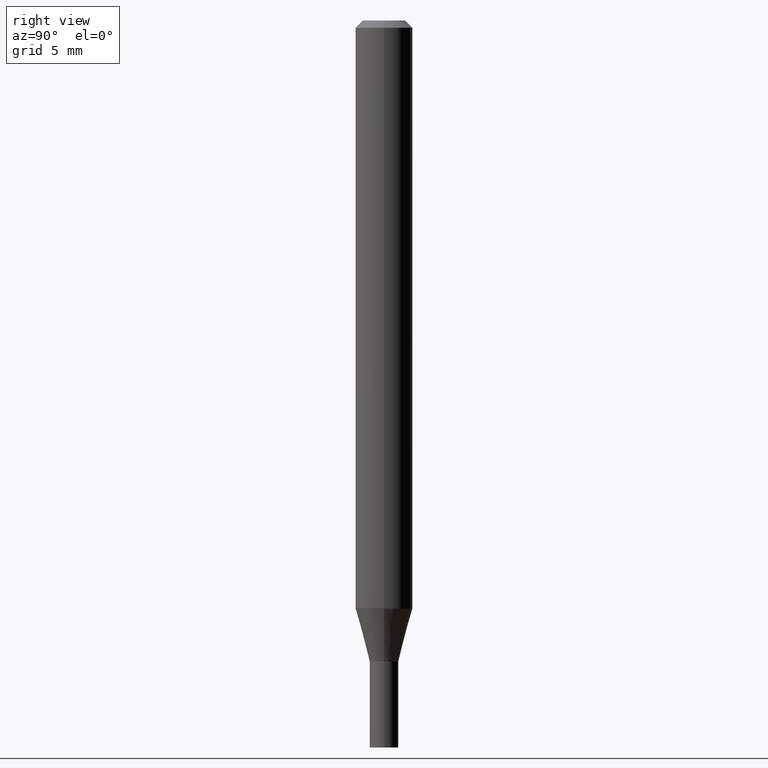
[diagram: clean part render]
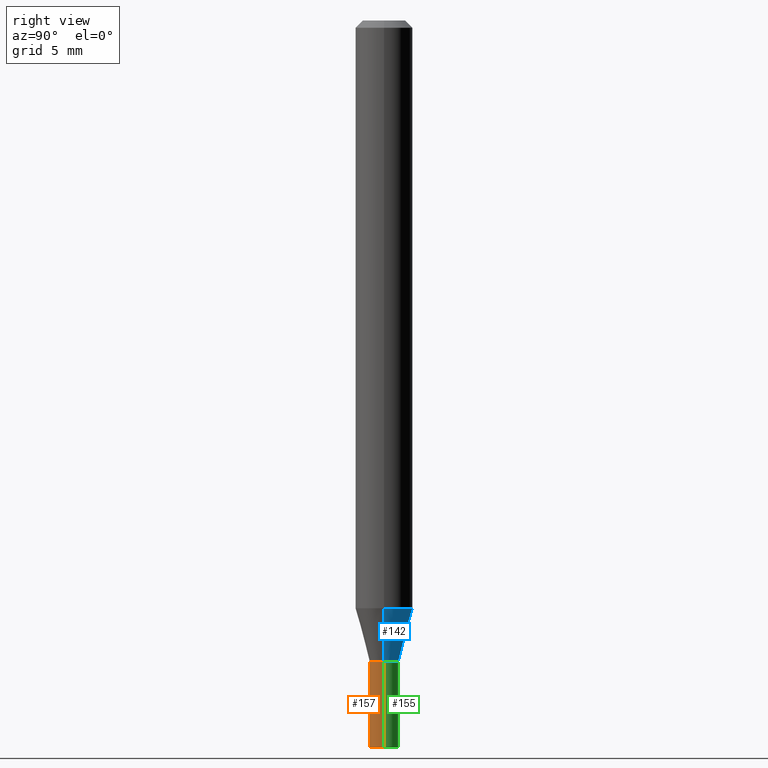
[diagram: same view with three faces highlighted in distinct colors, each labeled with its STEP entity id]
A machine part, right view with three faces highlighted in distinct colors.
Their STEP definitions:

[orange] entity #157 — the highlighted cylindrical surface (edge-blend (fillet) strip) has radius 0.7506 mm, axis along (-0, 0, 1).
#6 = CARTESIAN_POINT ( 'NONE',  ( -0.02954999999999999988, 2.099653784171096041E-16, -1.453545319170324550E-30 ) ) ;
#22 = VERTEX_POINT ( 'NONE', #60 ) ;
#24 = VECTOR ( 'NONE', #161, 39.37007874015748143 ) ;
#42 = CARTESIAN_POINT ( 'NONE',  ( 0.02954999999999999988, -4.824878062147342468E-15, -1.322800000000000198 ) ) ;
#53 = EDGE_CURVE ( 'NONE', #65, #197, #54, .T. ) ;
#54 = CIRCLE ( 'NONE', #210, 0.02954999999999999988 ) ;
#60 = CARTESIAN_POINT ( 'NONE',  ( 0.02954999999999999988, -5.443568555390347787E-15, -1.500000000000000222 ) ) ;
#65 = VERTEX_POINT ( 'NONE', #285 ) ;
#71 = CARTESIAN_POINT ( 'NONE',  ( 0.000000000000000000, 0.000000000000000000, 0.000000000000000000 ) ) ;
#73 = DIRECTION ( 'NONE',  ( 1.000000000000000000, -6.982962677686261977E-15, 0.000000000000000000 ) ) ;
#111 = DIRECTION ( 'NONE',  ( 1.000000000000000000, -6.982962677686266711E-15, 4.876176775795935793E-29 ) ) ;
#132 = EDGE_LOOP ( 'NONE', ( #204, #215, #144, #461 ) ) ;
#144 = ORIENTED_EDGE ( 'NONE', *, *, #311, .T. ) ;
#149 = DIRECTION ( 'NONE',  ( -2.445468806185136597E-29, 3.491481338843145583E-15, 1.000000000000000000 ) ) ;
#154 = DIRECTION ( 'NONE',  ( -2.445468806185136877E-29, 3.491481338843145188E-15, 1.000000000000000000 ) ) ;
#156 = AXIS2_PLACEMENT_3D ( 'NONE', #71, #368, #111 ) ;
#157 = ADVANCED_FACE ( 'NONE', ( #404 ), #190, .T. ) ;
#161 = DIRECTION ( 'NONE',  ( -2.445468806185136877E-29, 3.491481338843145188E-15, 1.000000000000000000 ) ) ;
#163 = EDGE_CURVE ( 'NONE', #426, #22, #187, .T. ) ;
#172 = CARTESIAN_POINT ( 'NONE',  ( 3.234866136821698561E-29, -4.618531515021712857E-15, -1.322800000000000198 ) ) ;
#176 = EDGE_CURVE ( 'NONE', #426, #65, #301, .T. ) ;
#187 = CIRCLE ( 'NONE', #362, 0.02954999999999999988 ) ;
#190 = CYLINDRICAL_SURFACE ( 'NONE', #156, 0.02954999999999999988 ) ;
#197 = VERTEX_POINT ( 'NONE', #42 ) ;
#204 = ORIENTED_EDGE ( 'NONE', *, *, #176, .F. ) ;
#210 = AXIS2_PLACEMENT_3D ( 'NONE', #172, #313, #457 ) ;
#215 = ORIENTED_EDGE ( 'NONE', *, *, #163, .T. ) ;
#285 = CARTESIAN_POINT ( 'NONE',  ( -0.02954999999999999988, -4.717911383226106554E-15, -1.322800000000000198 ) ) ;
#297 = VECTOR ( 'NONE', #154, 39.37007874015748143 ) ;
#299 = CARTESIAN_POINT ( 'NONE',  ( 3.668203209277704895E-29, -5.237222008264718177E-15, -1.500000000000000222 ) ) ;
#301 = LINE ( 'NONE', #6, #297 ) ;
#311 = EDGE_CURVE ( 'NONE', #22, #197, #347, .T. ) ;
#312 = CARTESIAN_POINT ( 'NONE',  ( -0.02954999999999999988, -4.717911383226106554E-15, -1.500000000000000222 ) ) ;
#313 = DIRECTION ( 'NONE',  ( -2.445468806185136597E-29, 3.491481338843145583E-15, 1.000000000000000000 ) ) ;
#347 = LINE ( 'NONE', #444, #24 ) ;
#362 = AXIS2_PLACEMENT_3D ( 'NONE', #299, #149, #73 ) ;
#368 = DIRECTION ( 'NONE',  ( -2.445468806185136597E-29, 3.491481338843145583E-15, 1.000000000000000000 ) ) ;
#404 = FACE_OUTER_BOUND ( 'NONE', #132, .T. ) ;
#426 = VERTEX_POINT ( 'NONE', #312 ) ;
#444 = CARTESIAN_POINT ( 'NONE',  ( 0.02954999999999999988, -2.063465471256291914E-16, 1.440910237247699070E-30 ) ) ;
#457 = DIRECTION ( 'NONE',  ( 1.000000000000000000, -6.982962677686261977E-15, 0.000000000000000000 ) ) ;
#461 = ORIENTED_EDGE ( 'NONE', *, *, #53, .F. ) ;

[blue] entity #142 — the highlighted conical surface has half-angle 15 deg.
#10 = ORIENTED_EDGE ( 'NONE', *, *, #34, .T. ) ;
#12 = DIRECTION ( 'NONE',  ( 1.000000000000000000, -6.982962677686273021E-15, 0.000000000000000000 ) ) ;
#34 = EDGE_CURVE ( 'NONE', #392, #174, #58, .T. ) ;
#40 = DIRECTION ( 'NONE',  ( 1.000000000000000000, -6.982962677686280121E-15, 0.000000000000000000 ) ) ;
#46 = CARTESIAN_POINT ( 'NONE',  ( 2.965631028747970028E-29, -4.234135135389597001E-15, -1.212704501176718130 ) ) ;
#52 = DIRECTION ( 'NONE',  ( -2.445468806185136597E-29, 3.491481338843145583E-15, 1.000000000000000000 ) ) ;
#58 = LINE ( 'NONE', #98, #380 ) ;
#62 = CARTESIAN_POINT ( 'NONE',  ( -0.02954999999999992355, -4.111562893263929715E-15, -1.322799999999999976 ) ) ;
#76 = VECTOR ( 'NONE', #302, 39.37007874015748143 ) ;
#80 = EDGE_CURVE ( 'NONE', #446, #392, #164, .T. ) ;
#82 = AXIS2_PLACEMENT_3D ( 'NONE', #265, #336, #294 ) ;
#96 = CARTESIAN_POINT ( 'NONE',  ( 3.234866136821698001E-29, -4.618531515021712068E-15, -1.322799999999999976 ) ) ;
#98 = CARTESIAN_POINT ( 'NONE',  ( -0.02954999999999992355, -4.408566136604602711E-15, -1.322799999999999976 ) ) ;
#100 = ORIENTED_EDGE ( 'NONE', *, *, #80, .T. ) ;
#115 = FACE_OUTER_BOUND ( 'NONE', #361, .T. ) ;
#142 = ADVANCED_FACE ( 'NONE', ( #115 ), #228, .T. ) ;
#164 = CIRCLE ( 'NONE', #448, 0.02954999999999992355 ) ;
#174 = VERTEX_POINT ( 'NONE', #339 ) ;
#186 = DIRECTION ( 'NONE',  ( -2.445468806185136597E-29, 3.491481338843145583E-15, 1.000000000000000000 ) ) ;
#206 = DIRECTION ( 'NONE',  ( -0.2588190451025215721, 5.211531920934551831E-15, 0.9659258262890679791 ) ) ;
#213 = AXIS2_PLACEMENT_3D ( 'NONE', #46, #52, #12 ) ;
#228 = CONICAL_SURFACE ( 'NONE', #82, 0.02954999999999992355, 0.2617993877991502960 ) ;
#234 = CARTESIAN_POINT ( 'NONE',  ( 0.02954999999999992355, -4.824878062147340890E-15, -1.322799999999999976 ) ) ;
#265 = CARTESIAN_POINT ( 'NONE',  ( 3.234866136821698001E-29, -4.618531515021712068E-15, -1.322799999999999976 ) ) ;
#292 = EDGE_CURVE ( 'NONE', #358, #174, #376, .T. ) ;
#294 = DIRECTION ( 'NONE',  ( 1.000000000000000000, -6.982962677686280121E-15, 0.000000000000000000 ) ) ;
#302 = DIRECTION ( 'NONE',  ( 0.2588190451025215721, 1.565188264969619995E-15, 0.9659258262890679791 ) ) ;
#305 = LINE ( 'NONE', #234, #76 ) ;
#310 = CARTESIAN_POINT ( 'NONE',  ( 0.05904999999999999832, -4.646479081506971132E-15, -1.212704501176718130 ) ) ;
#317 = CARTESIAN_POINT ( 'NONE',  ( 0.02954999999999992355, -4.824878062147340890E-15, -1.322799999999999976 ) ) ;
#323 = EDGE_CURVE ( 'NONE', #446, #358, #305, .T. ) ;
#336 = DIRECTION ( 'NONE',  ( -2.445468806185136597E-29, 3.491481338843145583E-15, 1.000000000000000000 ) ) ;
#339 = CARTESIAN_POINT ( 'NONE',  ( -0.05904999999999999832, -3.814559649923256719E-15, -1.212704501176718130 ) ) ;
#358 = VERTEX_POINT ( 'NONE', #310 ) ;
#361 = EDGE_LOOP ( 'NONE', ( #100, #10, #430, #453 ) ) ;
#376 = CIRCLE ( 'NONE', #213, 0.05904999999999999832 ) ;
#380 = VECTOR ( 'NONE', #206, 39.37007874015748143 ) ;
#392 = VERTEX_POINT ( 'NONE', #62 ) ;
#430 = ORIENTED_EDGE ( 'NONE', *, *, #292, .F. ) ;
#446 = VERTEX_POINT ( 'NONE', #317 ) ;
#448 = AXIS2_PLACEMENT_3D ( 'NONE', #96, #186, #40 ) ;
#453 = ORIENTED_EDGE ( 'NONE', *, *, #323, .F. ) ;

[green] entity #155 — the highlighted cylindrical surface (edge-blend (fillet) strip) has radius 0.7506 mm, axis along (-0, 0, 1).
#6 = CARTESIAN_POINT ( 'NONE',  ( -0.02954999999999999988, 2.099653784171096041E-16, -1.453545319170324550E-30 ) ) ;
#7 = CARTESIAN_POINT ( 'NONE',  ( 3.668203209277704895E-29, -5.237222008264718177E-15, -1.500000000000000222 ) ) ;
#22 = VERTEX_POINT ( 'NONE', #60 ) ;
#24 = VECTOR ( 'NONE', #161, 39.37007874015748143 ) ;
#42 = CARTESIAN_POINT ( 'NONE',  ( 0.02954999999999999988, -4.824878062147342468E-15, -1.322800000000000198 ) ) ;
#60 = CARTESIAN_POINT ( 'NONE',  ( 0.02954999999999999988, -5.443568555390347787E-15, -1.500000000000000222 ) ) ;
#64 = CARTESIAN_POINT ( 'NONE',  ( 3.234866136821698561E-29, -4.618531515021712857E-15, -1.322800000000000198 ) ) ;
#65 = VERTEX_POINT ( 'NONE', #285 ) ;
#75 = FACE_OUTER_BOUND ( 'NONE', #425, .T. ) ;
#146 = DIRECTION ( 'NONE',  ( 1.000000000000000000, -6.982962677686266711E-15, 4.876176775795935793E-29 ) ) ;
#150 = AXIS2_PLACEMENT_3D ( 'NONE', #435, #432, #146 ) ;
#154 = DIRECTION ( 'NONE',  ( -2.445468806185136877E-29, 3.491481338843145188E-15, 1.000000000000000000 ) ) ;
#155 = ADVANCED_FACE ( 'NONE', ( #75 ), #227, .T. ) ;
#161 = DIRECTION ( 'NONE',  ( -2.445468806185136877E-29, 3.491481338843145188E-15, 1.000000000000000000 ) ) ;
#176 = EDGE_CURVE ( 'NONE', #426, #65, #301, .T. ) ;
#179 = CIRCLE ( 'NONE', #275, 0.02954999999999999988 ) ;
#195 = AXIS2_PLACEMENT_3D ( 'NONE', #64, #391, #396 ) ;
#197 = VERTEX_POINT ( 'NONE', #42 ) ;
#207 = EDGE_CURVE ( 'NONE', #22, #426, #179, .T. ) ;
#227 = CYLINDRICAL_SURFACE ( 'NONE', #150, 0.02954999999999999988 ) ;
#269 = CIRCLE ( 'NONE', #195, 0.02954999999999999988 ) ;
#275 = AXIS2_PLACEMENT_3D ( 'NONE', #7, #332, #340 ) ;
#285 = CARTESIAN_POINT ( 'NONE',  ( -0.02954999999999999988, -4.717911383226106554E-15, -1.322800000000000198 ) ) ;
#297 = VECTOR ( 'NONE', #154, 39.37007874015748143 ) ;
#301 = LINE ( 'NONE', #6, #297 ) ;
#311 = EDGE_CURVE ( 'NONE', #22, #197, #347, .T. ) ;
#312 = CARTESIAN_POINT ( 'NONE',  ( -0.02954999999999999988, -4.717911383226106554E-15, -1.500000000000000222 ) ) ;
#318 = ORIENTED_EDGE ( 'NONE', *, *, #311, .F. ) ;
#322 = ORIENTED_EDGE ( 'NONE', *, *, #422, .F. ) ;
#326 = ORIENTED_EDGE ( 'NONE', *, *, #207, .T. ) ;
#332 = DIRECTION ( 'NONE',  ( -2.445468806185136597E-29, 3.491481338843145583E-15, 1.000000000000000000 ) ) ;
#340 = DIRECTION ( 'NONE',  ( 1.000000000000000000, -6.982962677686261977E-15, 0.000000000000000000 ) ) ;
#347 = LINE ( 'NONE', #444, #24 ) ;
#388 = ORIENTED_EDGE ( 'NONE', *, *, #176, .T. ) ;
#391 = DIRECTION ( 'NONE',  ( -2.445468806185136597E-29, 3.491481338843145583E-15, 1.000000000000000000 ) ) ;
#396 = DIRECTION ( 'NONE',  ( 1.000000000000000000, -6.982962677686261977E-15, 0.000000000000000000 ) ) ;
#422 = EDGE_CURVE ( 'NONE', #197, #65, #269, .T. ) ;
#425 = EDGE_LOOP ( 'NONE', ( #326, #388, #322, #318 ) ) ;
#426 = VERTEX_POINT ( 'NONE', #312 ) ;
#432 = DIRECTION ( 'NONE',  ( -2.445468806185136597E-29, 3.491481338843145583E-15, 1.000000000000000000 ) ) ;
#435 = CARTESIAN_POINT ( 'NONE',  ( 0.000000000000000000, 0.000000000000000000, 0.000000000000000000 ) ) ;
#444 = CARTESIAN_POINT ( 'NONE',  ( 0.02954999999999999988, -2.063465471256291914E-16, 1.440910237247699070E-30 ) ) ;